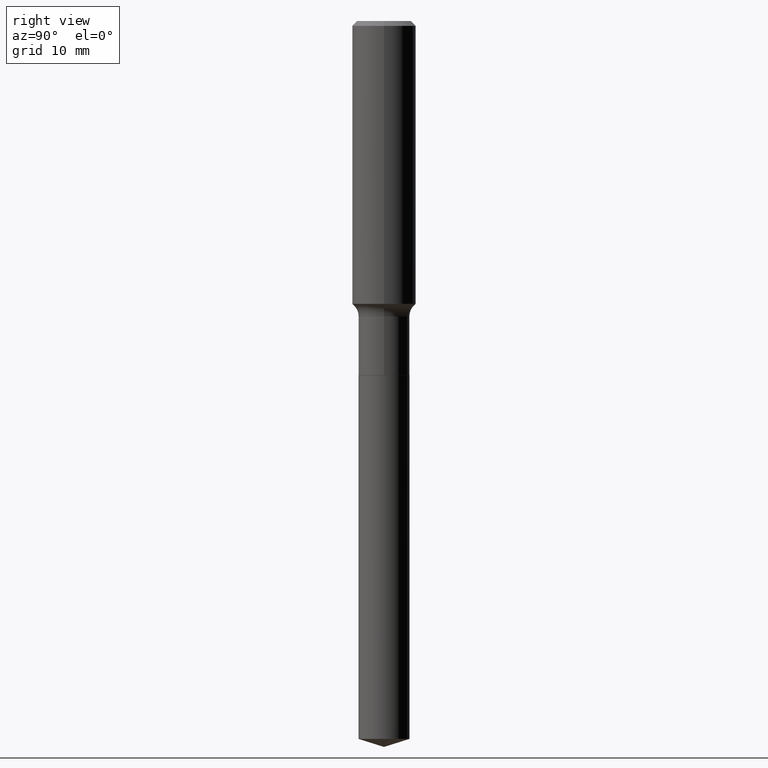
[diagram: clean part render]
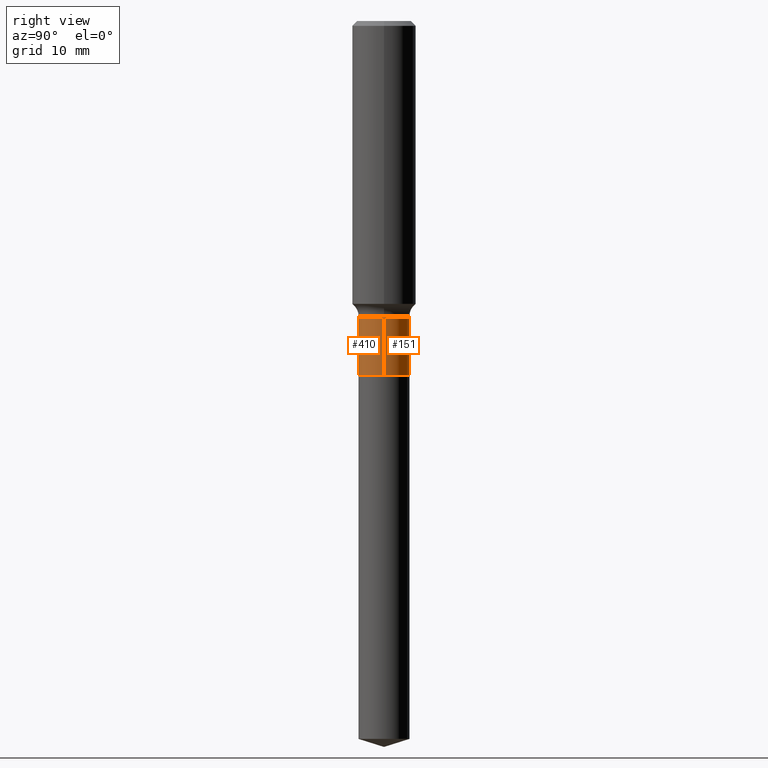
[diagram: same view with one multi-face feature highlighted, each face labeled with its STEP entity id]
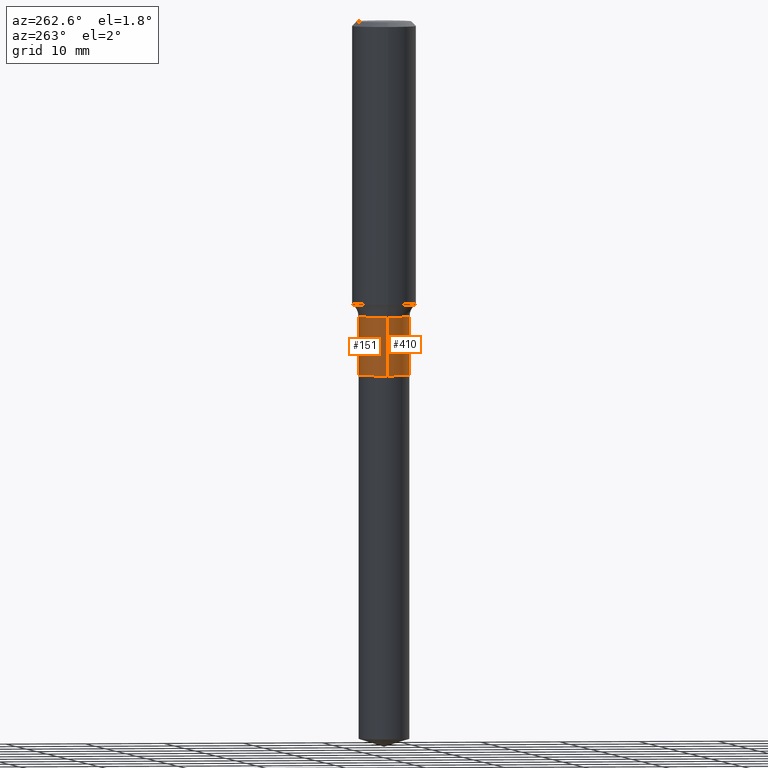
[diagram: same view with one multi-face feature highlighted, each face labeled with its STEP entity id]
A machine part, right view. The highlighted faces form ONE feature: a constant-radius fillet chain: 2 tangent blend faces with common blend radius 3.2004 mm. The faces share edges in the B-rep.
A second angle (auxiliary view) of the same feature is appended — it is thin or edge-on in the first view.
Their STEP definitions:
[1] entity #151 (Cylinder):
#12 = AXIS2_PLACEMENT_3D ( 'NONE', #366, #388, #312 ) ;
#19 = VECTOR ( 'NONE', #456, 39.37007874015748143 ) ;
#43 = EDGE_CURVE ( 'NONE', #418, #165, #91, .T. ) ;
#52 = CARTESIAN_POINT ( 'NONE',  ( -0.1259999999999999731, 8.952838470577260433E-16, -6.197858213721180607E-30 ) ) ;
#58 = CARTESIAN_POINT ( 'NONE',  ( -0.1259999999999999731, -4.701386165040894115E-15, -1.458299999999999930 ) ) ;
#67 = DIRECTION ( 'NONE',  ( 1.000000000000000000, -6.982962677686266711E-15, 4.876176775795936353E-29 ) ) ;
#73 = CARTESIAN_POINT ( 'NONE',  ( 0.1259999999999999731, -5.971480533823427821E-15, -1.458299999999999930 ) ) ;
#75 = CARTESIAN_POINT ( 'NONE',  ( 3.566227160059783861E-29, -5.091627236434958468E-15, -1.458299999999999930 ) ) ;
#91 = LINE ( 'NONE', #52, #454 ) ;
#97 = VERTEX_POINT ( 'NONE', #73 ) ;
#118 = EDGE_LOOP ( 'NONE', ( #298, #363, #169, #211 ) ) ;
#139 = LINE ( 'NONE', #292, #19 ) ;
#151 = ADVANCED_FACE ( 'NONE', ( #167 ), #449, .T. ) ;
#165 = VERTEX_POINT ( 'NONE', #58 ) ;
#167 = FACE_OUTER_BOUND ( 'NONE', #118, .T. ) ;
#169 = ORIENTED_EDGE ( 'NONE', *, *, #323, .F. ) ;
#176 = CIRCLE ( 'NONE', #468, 0.1259999999999999731 ) ;
#190 = VERTEX_POINT ( 'NONE', #367 ) ;
#201 = DIRECTION ( 'NONE',  ( -2.445468806185136877E-29, 3.491481338843145188E-15, 1.000000000000000000 ) ) ;
#211 = ORIENTED_EDGE ( 'NONE', *, *, #346, .F. ) ;
#259 = CARTESIAN_POINT ( 'NONE',  ( -0.1260000000000000286, -4.701386165040894115E-15, -1.747600000000000264 ) ) ;
#292 = CARTESIAN_POINT ( 'NONE',  ( 0.1259999999999999731, -8.798532973884694517E-16, 6.143982737502878847E-30 ) ) ;
#298 = ORIENTED_EDGE ( 'NONE', *, *, #432, .T. ) ;
#312 = DIRECTION ( 'NONE',  ( 1.000000000000000000, -6.982962677686262766E-15, 0.000000000000000000 ) ) ;
#321 = CARTESIAN_POINT ( 'NONE',  ( 0.000000000000000000, 0.000000000000000000, 0.000000000000000000 ) ) ;
#323 = EDGE_CURVE ( 'NONE', #97, #165, #176, .T. ) ;
#346 = EDGE_CURVE ( 'NONE', #190, #97, #139, .T. ) ;
#350 = DIRECTION ( 'NONE',  ( -2.445468806185136597E-29, 3.491481338843145583E-15, 1.000000000000000000 ) ) ;
#363 = ORIENTED_EDGE ( 'NONE', *, *, #43, .T. ) ;
#366 = CARTESIAN_POINT ( 'NONE',  ( 4.273701285689145503E-29, -6.101712787762282243E-15, -1.747600000000000264 ) ) ;
#367 = CARTESIAN_POINT ( 'NONE',  ( 0.1260000000000000009, -6.981566085150751596E-15, -1.747600000000000264 ) ) ;
#388 = DIRECTION ( 'NONE',  ( -2.445468806185136597E-29, 3.491481338843145583E-15, 1.000000000000000000 ) ) ;
#418 = VERTEX_POINT ( 'NONE', #259 ) ;
#432 = EDGE_CURVE ( 'NONE', #190, #418, #480, .T. ) ;
#449 = CYLINDRICAL_SURFACE ( 'NONE', #479, 0.1259999999999999731 ) ;
#454 = VECTOR ( 'NONE', #201, 39.37007874015748143 ) ;
#456 = DIRECTION ( 'NONE',  ( -2.445468806185136877E-29, 3.491481338843145188E-15, 1.000000000000000000 ) ) ;
#460 = DIRECTION ( 'NONE',  ( 1.000000000000000000, -6.982962677686264344E-15, 0.000000000000000000 ) ) ;
#468 = AXIS2_PLACEMENT_3D ( 'NONE', #75, #350, #460 ) ;
#472 = DIRECTION ( 'NONE',  ( -2.445468806185136597E-29, 3.491481338843145583E-15, 1.000000000000000000 ) ) ;
#479 = AXIS2_PLACEMENT_3D ( 'NONE', #321, #472, #67 ) ;
#480 = CIRCLE ( 'NONE', #12, 0.1260000000000000009 ) ;
[2] entity #410 (Cylinder):
#2 = DIRECTION ( 'NONE',  ( -2.445468806185136597E-29, 3.491481338843145583E-15, 1.000000000000000000 ) ) ;
#19 = VECTOR ( 'NONE', #456, 39.37007874015748143 ) ;
#31 = AXIS2_PLACEMENT_3D ( 'NONE', #268, #470, #187 ) ;
#43 = EDGE_CURVE ( 'NONE', #418, #165, #91, .T. ) ;
#52 = CARTESIAN_POINT ( 'NONE',  ( -0.1259999999999999731, 8.952838470577260433E-16, -6.197858213721180607E-30 ) ) ;
#58 = CARTESIAN_POINT ( 'NONE',  ( -0.1259999999999999731, -4.701386165040894115E-15, -1.458299999999999930 ) ) ;
#73 = CARTESIAN_POINT ( 'NONE',  ( 0.1259999999999999731, -5.971480533823427821E-15, -1.458299999999999930 ) ) ;
#91 = LINE ( 'NONE', #52, #454 ) ;
#97 = VERTEX_POINT ( 'NONE', #73 ) ;
#109 = DIRECTION ( 'NONE',  ( -2.445468806185136597E-29, 3.491481338843145583E-15, 1.000000000000000000 ) ) ;
#138 = DIRECTION ( 'NONE',  ( 1.000000000000000000, -6.982962677686266711E-15, 4.876176775795936353E-29 ) ) ;
#139 = LINE ( 'NONE', #292, #19 ) ;
#148 = CARTESIAN_POINT ( 'NONE',  ( 3.566227160059783861E-29, -5.091627236434958468E-15, -1.458299999999999930 ) ) ;
#165 = VERTEX_POINT ( 'NONE', #58 ) ;
#187 = DIRECTION ( 'NONE',  ( 1.000000000000000000, -6.982962677686262766E-15, 0.000000000000000000 ) ) ;
#190 = VERTEX_POINT ( 'NONE', #367 ) ;
#201 = DIRECTION ( 'NONE',  ( -2.445468806185136877E-29, 3.491481338843145188E-15, 1.000000000000000000 ) ) ;
#214 = AXIS2_PLACEMENT_3D ( 'NONE', #215, #2, #138 ) ;
#215 = CARTESIAN_POINT ( 'NONE',  ( 0.000000000000000000, 0.000000000000000000, 0.000000000000000000 ) ) ;
#239 = ORIENTED_EDGE ( 'NONE', *, *, #443, .T. ) ;
#254 = FACE_OUTER_BOUND ( 'NONE', #463, .T. ) ;
#257 = CIRCLE ( 'NONE', #31, 0.1260000000000000009 ) ;
#259 = CARTESIAN_POINT ( 'NONE',  ( -0.1260000000000000286, -4.701386165040894115E-15, -1.747600000000000264 ) ) ;
#265 = ORIENTED_EDGE ( 'NONE', *, *, #346, .T. ) ;
#268 = CARTESIAN_POINT ( 'NONE',  ( 4.273701285689145503E-29, -6.101712787762282243E-15, -1.747600000000000264 ) ) ;
#272 = ORIENTED_EDGE ( 'NONE', *, *, #461, .F. ) ;
#292 = CARTESIAN_POINT ( 'NONE',  ( 0.1259999999999999731, -8.798532973884694517E-16, 6.143982737502878847E-30 ) ) ;
#346 = EDGE_CURVE ( 'NONE', #190, #97, #139, .T. ) ;
#367 = CARTESIAN_POINT ( 'NONE',  ( 0.1260000000000000009, -6.981566085150751596E-15, -1.747600000000000264 ) ) ;
#377 = CIRCLE ( 'NONE', #417, 0.1259999999999999731 ) ;
#384 = DIRECTION ( 'NONE',  ( 1.000000000000000000, -6.982962677686264344E-15, 0.000000000000000000 ) ) ;
#410 = ADVANCED_FACE ( 'NONE', ( #254 ), #489, .T. ) ;
#417 = AXIS2_PLACEMENT_3D ( 'NONE', #148, #109, #384 ) ;
#418 = VERTEX_POINT ( 'NONE', #259 ) ;
#443 = EDGE_CURVE ( 'NONE', #418, #190, #257, .T. ) ;
#444 = ORIENTED_EDGE ( 'NONE', *, *, #43, .F. ) ;
#454 = VECTOR ( 'NONE', #201, 39.37007874015748143 ) ;
#456 = DIRECTION ( 'NONE',  ( -2.445468806185136877E-29, 3.491481338843145188E-15, 1.000000000000000000 ) ) ;
#461 = EDGE_CURVE ( 'NONE', #165, #97, #377, .T. ) ;
#463 = EDGE_LOOP ( 'NONE', ( #444, #239, #265, #272 ) ) ;
#470 = DIRECTION ( 'NONE',  ( -2.445468806185136597E-29, 3.491481338843145583E-15, 1.000000000000000000 ) ) ;
#489 = CYLINDRICAL_SURFACE ( 'NONE', #214, 0.1259999999999999731 ) ;